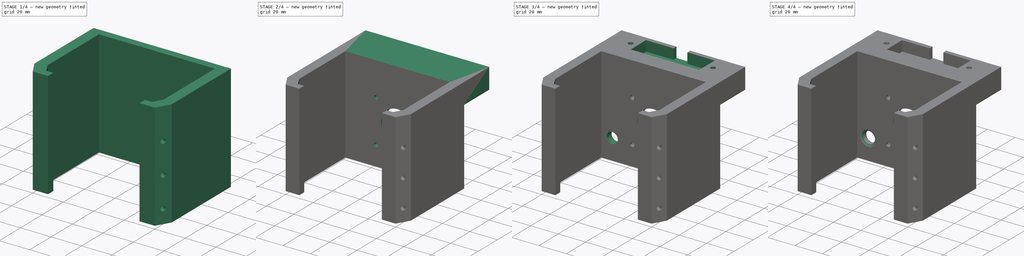
[diagram: build sequence overview — one tinted view per stage of 4, left to right]
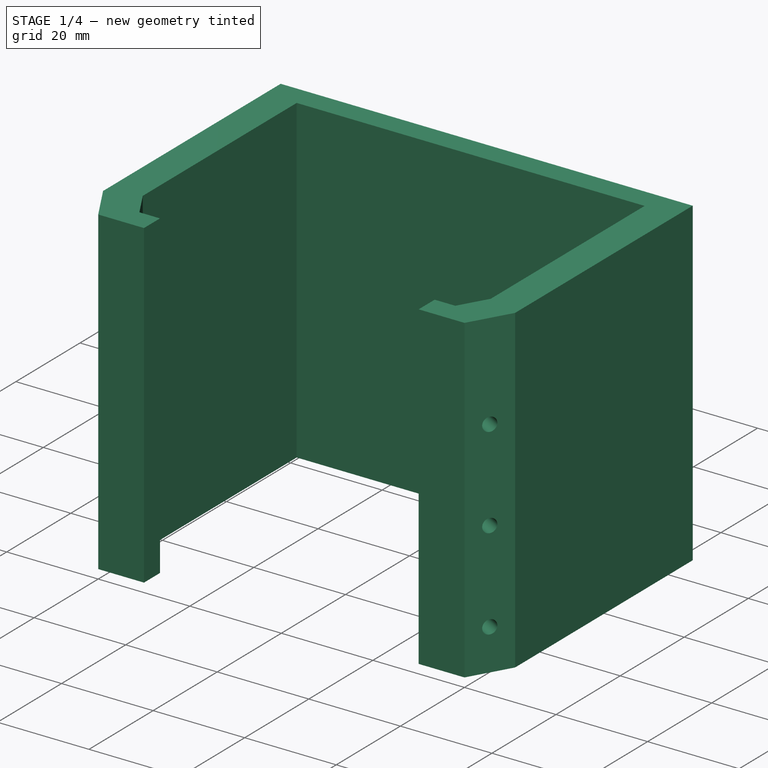
[diagram: stage 1 of 4 — iso view after this stage's code; geometry added in this stage tinted green]
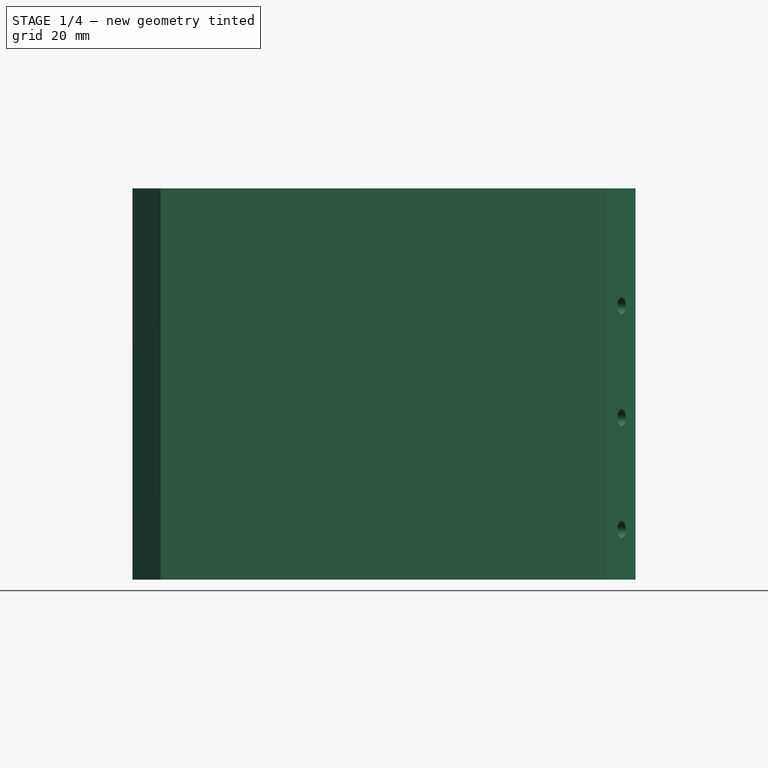
[diagram: stage 1 of 4 — front view after this stage's code; geometry added in this stage tinted green]
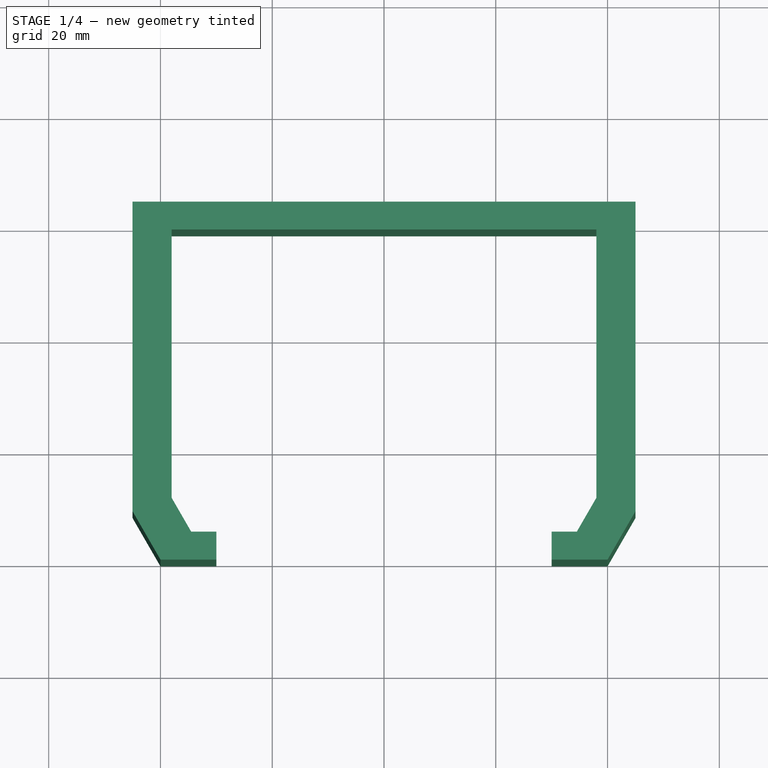
[diagram: stage 1 of 4 — top view after this stage's code; geometry added in this stage tinted green]
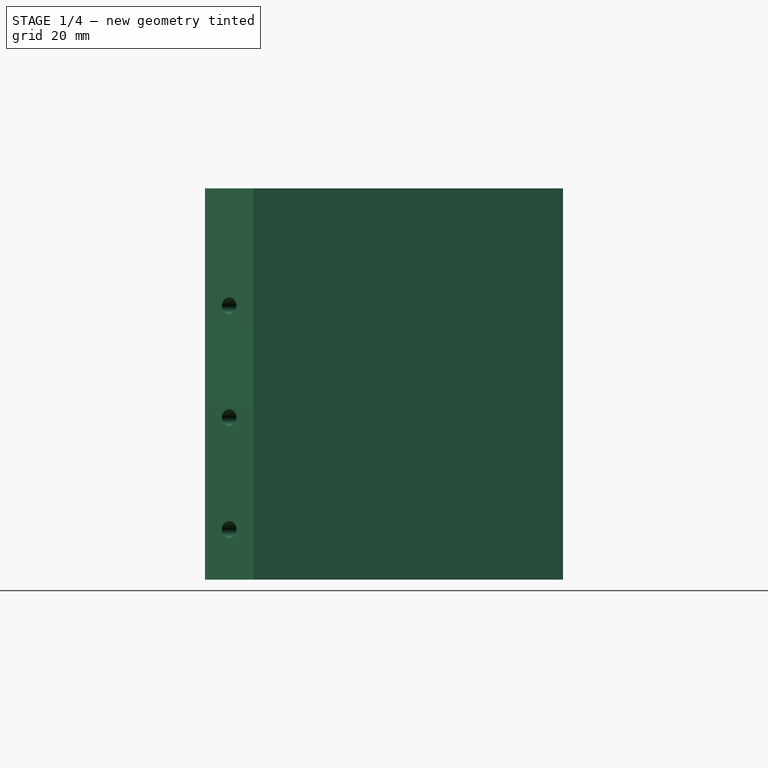
[diagram: stage 1 of 4 — right view after this stage's code; geometry added in this stage tinted green]
FCSTD DOCUMENT  (FreeCAD 2022.407R26244 +4693 (Git))
Label: motorFrame
License: All rights reserved
LicenseURL: http://en.wikipedia.org/wiki/All_rights_reserved
objects: Sketcher::SketchObject×9, PartDesign::Pocket×5, PartDesign::Mirrored×3, PartDesign::Pad×2, PartDesign::Hole×2, PartDesign::Fillet×1, PartDesign::Body×1, App::Link×1
note: 49 computed .brp shape members not serialized (recipe doc carries the construction recipe); baked Part::Feature solids carry a one-line shape summary decoded from their .brp
EXTERNAL_REF file=MonsterKossel_dimensions.FCStd obj=Spreadsheet

FEATURE [Sketcher::SketchObject] Sketch
  FullyConstrained = true
  MapMode = 5
  Support = -> [XY_Plane]
  TreeRank = 0
  sketch-geometry (10):
    g0: LineSegment StartX=30 StartY=0 StartZ=0 EndX=40 EndY=0 EndZ=0
    g1: LineSegment StartX=45 StartY=64.0622 StartZ=0 EndX=0 EndY=64.0622 EndZ=0
    g2: LineSegment StartX=0 StartY=64.0622 StartZ=0 EndX=0 EndY=59.0622 EndZ=0
    g3: LineSegment StartX=0 StartY=59.0622 StartZ=0 EndX=38 EndY=59.0622 EndZ=0
    g4: LineSegment StartX=38 StartY=59.0622 StartZ=0 EndX=38 EndY=11.0622 EndZ=0
    g5: LineSegment StartX=34.5 StartY=5 StartZ=0 EndX=30 EndY=5 EndZ=0
    g6: LineSegment StartX=30 StartY=5 StartZ=0 EndX=30 EndY=0 EndZ=0
    g7: LineSegment StartX=40 StartY=0 StartZ=0 EndX=45 EndY=8.66025 EndZ=0
    g8: LineSegment StartX=45 StartY=64.0622 StartZ=0 EndX=45 EndY=8.66025 EndZ=0
    g9: LineSegment StartX=34.5 StartY=5 StartZ=0 EndX=38 EndY=11.0622 EndZ=0
  constraints (30):
    c: Coincident(g1,g2)
    c: Coincident(g2,g3)
    c: Coincident(g3,g4)
    c: Coincident(g5,g6)
    c: Coincident(g6,g0)
    c: Horizontal(g5)
    c: Horizontal(g0)
    c: Horizontal(g3)
    c: Horizontal(g1)
    c: Vertical(g2)
    c: Vertical(g4)
    c: Vertical(g6)
    c: DistanceY(g0) = 0
    c: DistanceY(g6,g6) = 5
    c: DistanceY(g4,g4) = 48
    c: DistanceY(g2,g2) = 5
    c: DistanceX(g2) = 0
    c: DistanceX(g0) = 40
    c: Coincident(g8,g7)
    c: Vertical(g8)
    c: Coincident(g8,g1)
    c: Coincident(g7,g0)
    c: Angle(g7,g0) = 2.0944
    c: DistanceX(g3,g1) = 7
    c: DistanceX(g-1,g0) = 30
    c: Parallel(g9,g7)
    c: Coincident(g9,g4)
    c: Coincident(g9,g5)
    c: Distance(g9) = 7
    c: Distance(g7) = 10
FEATURE [PartDesign::Pad] Pad
  AddSubType = 0
  AllowMultiFace = false
  CheckUpToFaceLimits = true
  ClaimChildren = false
  Direction = (0,0,1)
  Fit = 0
  FitJoin = 0
  InnerFit = 0
  InnerFitJoin = 0
  InnerTaperAngle = 0
  InnerTaperAngleRev = 0
  Length = 70
  Length2 = 100
  NewSolid = false
  Profile = -> Sketch
  Refine = true
  Suppress = false
  TreeRank = 0
  Type = 0
  _ProfileBasedVersion = 0
FEATURE [PartDesign::Mirrored] Mirrored
  AddSubType = 0
  BaseFeature = -> Pad
  CopyShape = true
  MirrorPlane = -> Sketch [V_Axis]
  NewSolid = false
  OriginalSubs = -> [Pad]
  Originals = -> [Pad]
  ParallelTransform = true
  Refine = true
  SubTransform = true
  Suppress = false
  TreeRank = 0
  _Version = 0
FEATURE [Sketcher::SketchObject] Sketch001
  FullyConstrained = true
  MapMode = 5
  Placement = pos=(23.7099,-13.6889,0) rot=(-0.377964,0.654654,0.654654;3.86433rad)
  Support = -> [Pad]
  TreeRank = 0
  sketch-geometry (3):
    g0: Circle CenterX=-25 CenterY=49 CenterZ=0 NormalX=0 NormalY=0 NormalZ=1 AngleXU=0 Radius=1.5
    g1: Circle CenterX=-25 CenterY=9 CenterZ=0 NormalX=0 NormalY=0 NormalZ=1 AngleXU=0 Radius=1.5
    g2: Circle CenterX=-25 CenterY=29 CenterZ=0 NormalX=0 NormalY=0 NormalZ=1 AngleXU=0 Radius=1.5
  constraints (9):
    c: Radius(g0) = 1.5
    c: Equal(g0,g2)
    c: Equal(g0,g1)
    c: DistanceY(g1,g2) = 20
    c: DistanceY(g2,g0) = 20
    c: DistanceY(g1) = 9
    c: Vertical(g1,g2)
    c: Vertical(g2,g0)
    c: DistanceX(g1,g-1) = 25
FEATURE [PartDesign::Pocket] Pocket001  label="Frame mounting holes"
  AddSubType = 1
  BaseFeature = -> Mirrored
  CheckUpToFaceLimits = true
  ClaimChildren = false
  Fit = 0
  FitJoin = 0
  InnerFit = 0
  InnerFitJoin = 0
  InnerTaperAngle = 0
  InnerTaperAngleRev = 0
  Length = 5
  Length2 = 100
  NewSolid = false
  Profile = -> Sketch001
  Refine = true
  Suppress = false
  TreeRank = 0
  Type = 1
  _ProfileBasedVersion = 0
  _Version = 0
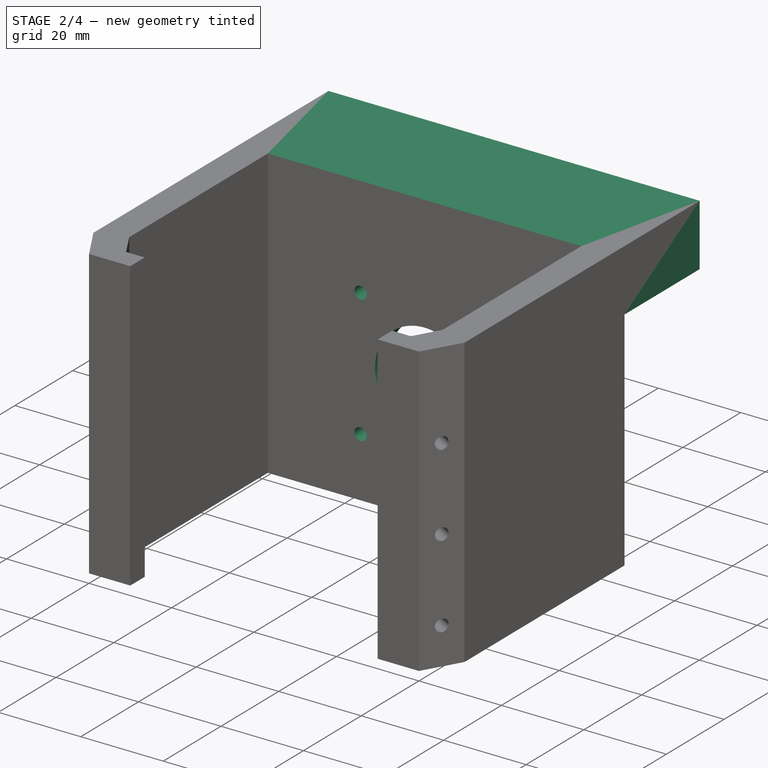
[diagram: stage 2 of 4 — iso view after this stage's code; geometry added in this stage tinted green]
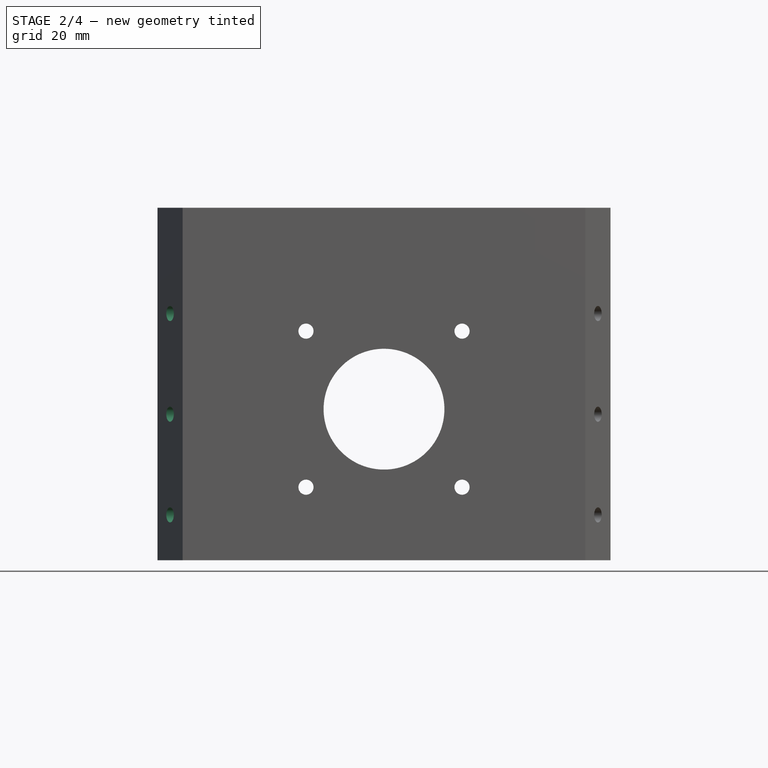
[diagram: stage 2 of 4 — front view after this stage's code; geometry added in this stage tinted green]
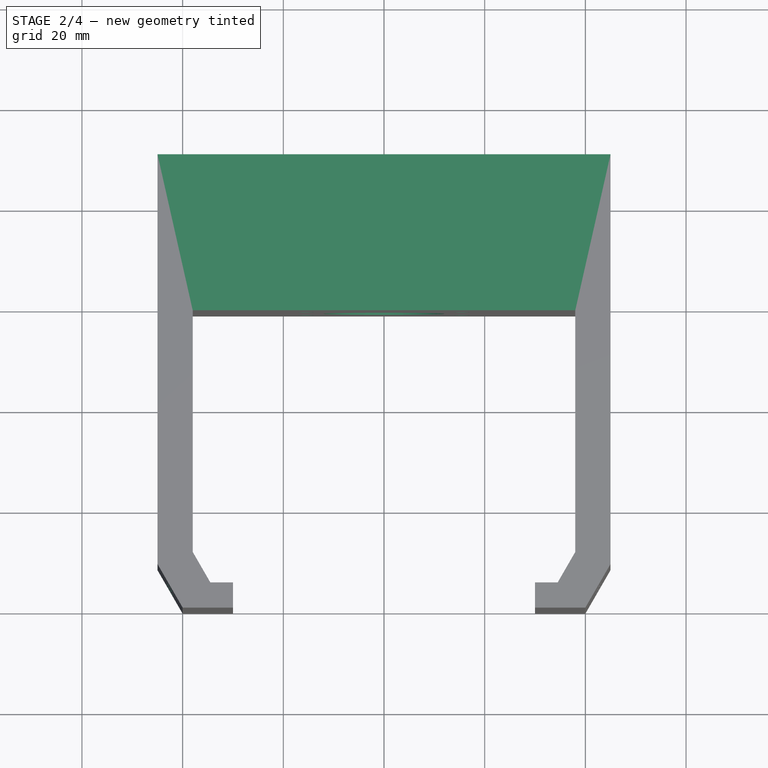
[diagram: stage 2 of 4 — top view after this stage's code; geometry added in this stage tinted green]
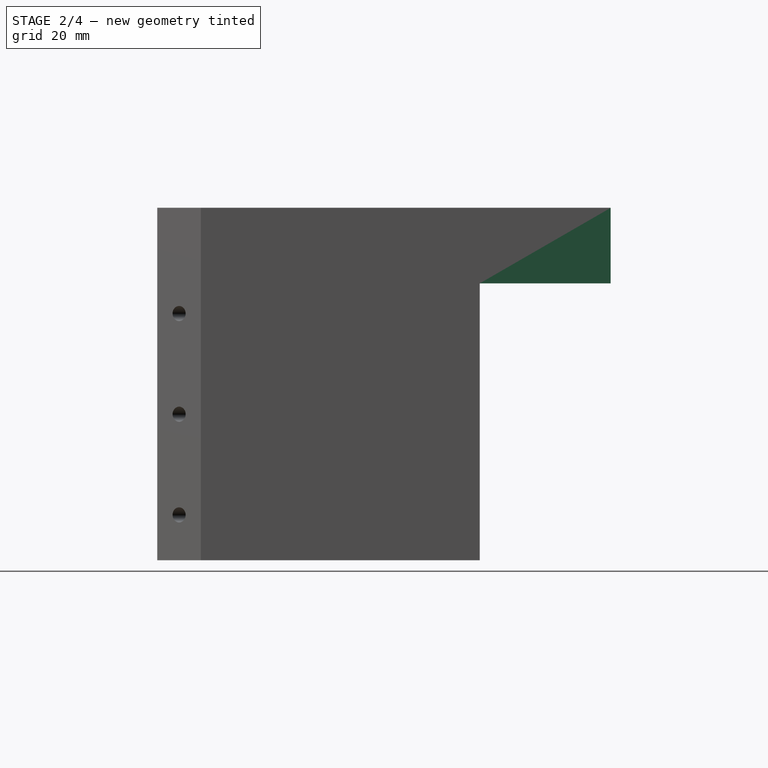
[diagram: stage 2 of 4 — right view after this stage's code; geometry added in this stage tinted green]
FEATURE [PartDesign::Mirrored] Mirrored001  label="Mirrored mounting holes"
  AddSubType = 0
  BaseFeature = -> Pocket001
  CopyShape = true
  MirrorPlane = -> YZ_Plane
  NewSolid = false
  OriginalSubs = -> [Pocket001]
  Originals = -> [Pocket001]
  ParallelTransform = true
  Refine = true
  SubTransform = true
  Suppress = false
  TreeRank = 0
  _Version = 0
FEATURE [Sketcher::SketchObject] Sketch002
  FullyConstrained = true
  MapMode = 2
  Placement = pos=(0,0,0) rot=(1,0,0;1.5708rad)
  TreeRank = 0
  sketch-geometry (9):
    g0: Circle CenterX=0 CenterY=30 CenterZ=0 NormalX=0 NormalY=0 NormalZ=1 AngleXU=0 Radius=12
    g1: Circle CenterX=-15.5 CenterY=45.5 CenterZ=0 NormalX=0 NormalY=0 NormalZ=1 AngleXU=0 Radius=1.5
    g2: Circle CenterX=-15.5 CenterY=14.5 CenterZ=0 NormalX=0 NormalY=0 NormalZ=1 AngleXU=0 Radius=1.5
    g3: Circle CenterX=15.5 CenterY=14.5 CenterZ=0 NormalX=0 NormalY=0 NormalZ=1 AngleXU=0 Radius=1.5
    g4: Circle CenterX=15.5 CenterY=45.5 CenterZ=0 NormalX=0 NormalY=0 NormalZ=1 AngleXU=0 Radius=1.5
    g5: LineSegment [constr] StartX=-15.5 StartY=45.5 StartZ=0 EndX=15.5 EndY=45.5 EndZ=0
    g6: LineSegment [constr] StartX=15.5 StartY=45.5 StartZ=0 EndX=15.5 EndY=14.5 EndZ=0
    g7: LineSegment [constr] StartX=15.5 StartY=14.5 StartZ=0 EndX=-15.5 EndY=14.5 EndZ=0
    g8: LineSegment [constr] StartX=-15.5 StartY=14.5 StartZ=0 EndX=-15.5 EndY=45.5 EndZ=0
  constraints (22):
    c: Radius(g1) = 1.5
    c: Equal(g1,g2)
    c: Equal(g1,g4)
    c: Equal(g1,g3)
    c: Radius(g0) = 12
    c: DistanceX(g1,g4) = 31
    c: DistanceY(g2,g1) = 31
    c: DistanceY(g0) = 30
    c: Coincident(g5,g6)
    c: Coincident(g6,g7)
    c: Coincident(g7,g8)
    c: Coincident(g8,g5)
    c: Horizontal(g5)
    c: Horizontal(g7)
    c: Vertical(g6)
    c: Vertical(g8)
    c: Coincident(g6,g3)
    c: Coincident(g7,g2)
    c: Coincident(g5,g1)
    c: Coincident(g5,g4)
    c: PointOnObject(g0,g-2)
    c: Symmetric(g1,g3,g0)
FEATURE [PartDesign::Pocket] Pocket  label="Stepper mounting holes"
  AddSubType = 1
  BaseFeature = -> Mirrored001
  CheckUpToFaceLimits = true
  ClaimChildren = false
  Fit = 0
  FitJoin = 0
  InnerFit = 0
  InnerFitJoin = 0
  InnerTaperAngle = 0
  InnerTaperAngleRev = 0
  Length = 5
  Length2 = 100
  NewSolid = false
  Profile = -> Sketch002
  Refine = true
  Suppress = false
  TreeRank = 0
  Type = 1
  _ProfileBasedVersion = 0
  _Version = 0
FEATURE [Sketcher::SketchObject] Sketch003
  FullyConstrained = true
  MapMode = 5
  Placement = pos=(0,64.0622,0) rot=(0,0.707107,0.707107;3.14159rad)
  Support = -> [Pocket]
  TreeRank = 0
  sketch-geometry (4):
    g0: LineSegment StartX=-45 StartY=70 StartZ=0 EndX=45 EndY=70 EndZ=0
    g1: LineSegment StartX=45 StartY=70 StartZ=0 EndX=45 EndY=55 EndZ=0
    g2: LineSegment StartX=45 StartY=55 StartZ=0 EndX=-45 EndY=55 EndZ=0
    g3: LineSegment StartX=-45 StartY=55 StartZ=0 EndX=-45 EndY=70 EndZ=0
  constraints (12):
    c: Coincident(g0,g1)
    c: Coincident(g1,g2)
    c: Coincident(g2,g3)
    c: Coincident(g3,g0)
    c: Horizontal(g0)
    c: Horizontal(g2)
    c: Vertical(g1)
    c: Vertical(g3)
    c: DistanceX(g0,g0) = 90
    c: DistanceY(g3,g3) = 15
    c: DistanceX(g2) = -45
    c: DistanceY(g2) = 55
FEATURE [PartDesign::Pad] Pad001  label="Bed mounting shelf"
  AddSubType = 0
  AlongSketchNormal = false
  BaseFeature = -> Pocket
  CheckUpToFaceLimits = true
  ClaimChildren = false
  Direction = (0,1,-2e-16)
  Fit = 0
  FitJoin = 0
  InnerFit = 0
  InnerFitJoin = 0
  InnerTaperAngle = 0
  InnerTaperAngleRev = 0
  Length = 26
  Length2 = 100
  NewSolid = false
  Profile = -> Sketch003
  Refine = true
  Suppress = false
  TreeRank = 0
  Type = 0
  _ProfileBasedVersion = 0
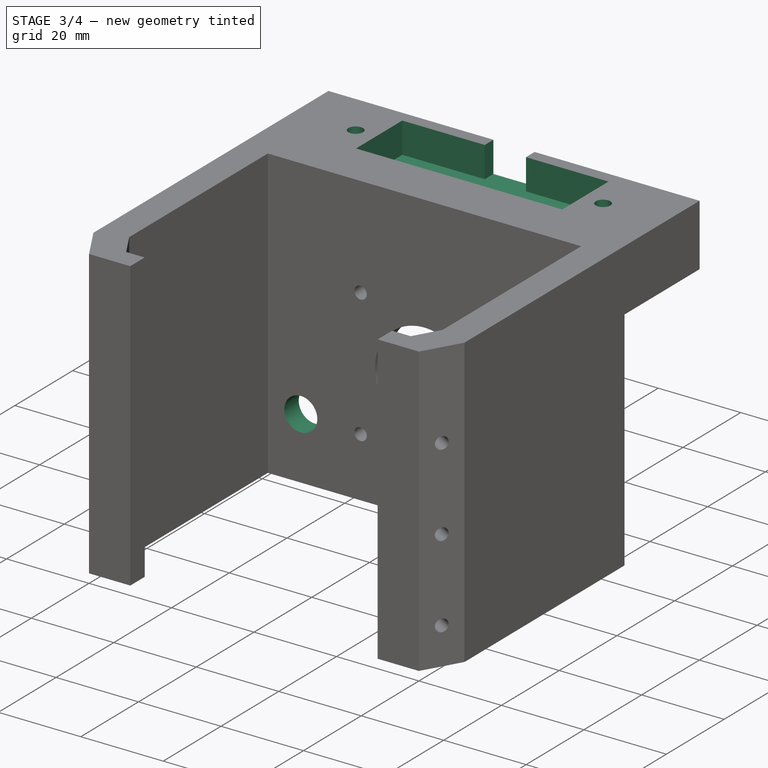
[diagram: stage 3 of 4 — iso view after this stage's code; geometry added in this stage tinted green]
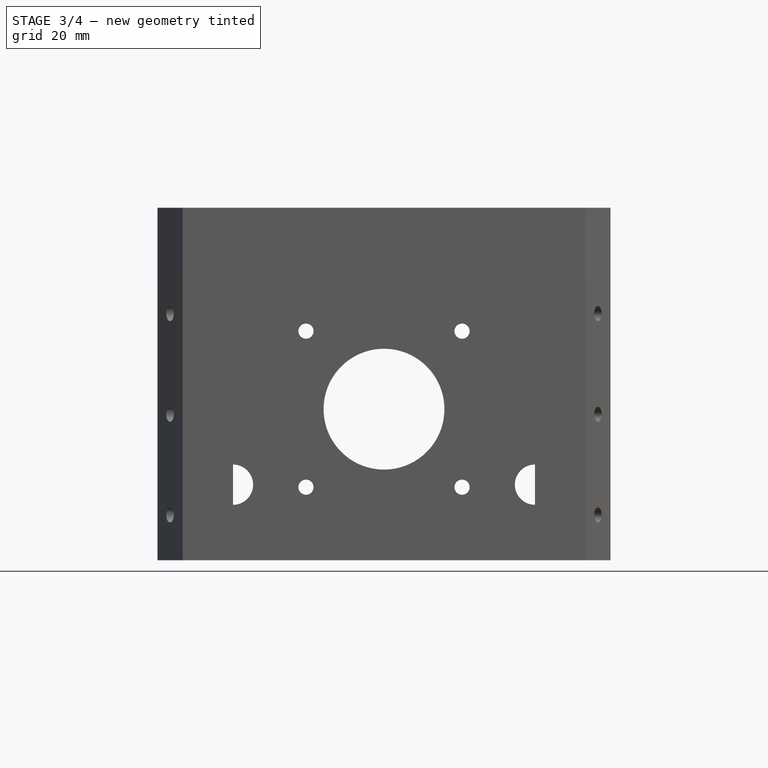
[diagram: stage 3 of 4 — front view after this stage's code; geometry added in this stage tinted green]
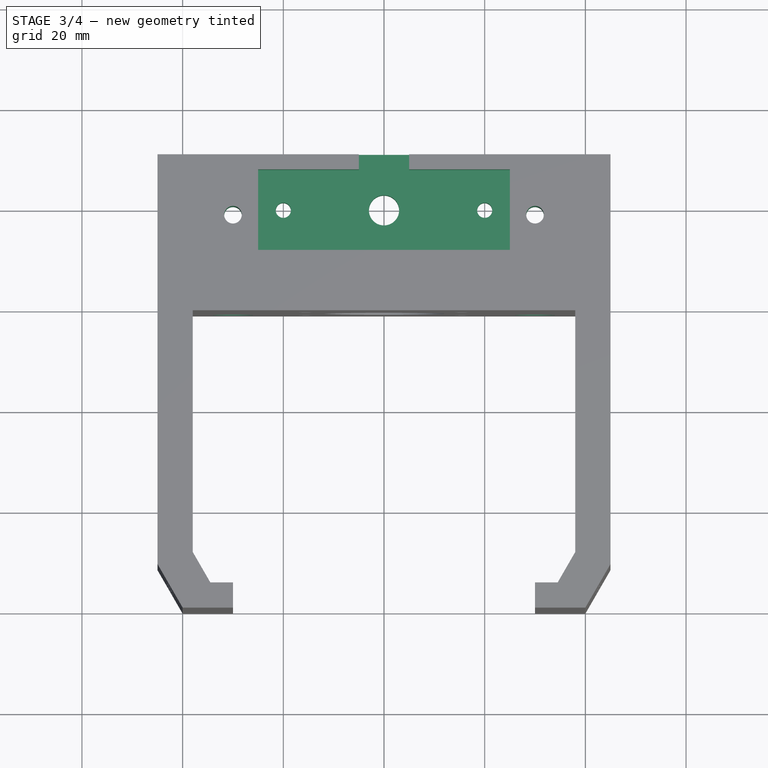
[diagram: stage 3 of 4 — top view after this stage's code; geometry added in this stage tinted green]
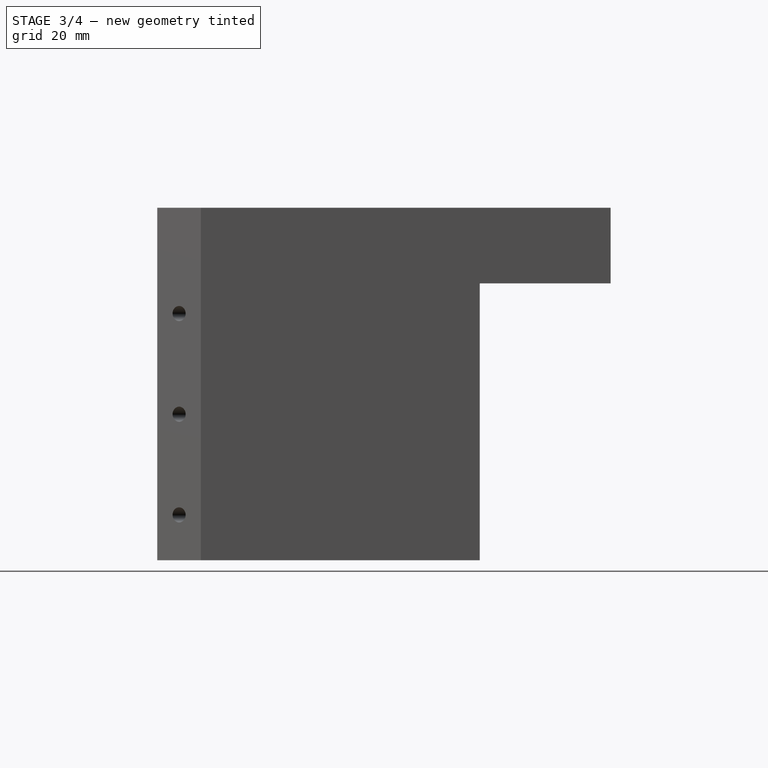
[diagram: stage 3 of 4 — right view after this stage's code; geometry added in this stage tinted green]
FEATURE [Sketcher::SketchObject] Sketch004
  ExternalGeometry = -> [Pad001]
  FullyConstrained = true
  MapMode = 5
  Placement = pos=(0,0,70) rot=(0,0,1;0rad)
  Support = -> [Pad001]
  TreeRank = 0
  sketch-geometry (8):
    g0: LineSegment StartX=-5 StartY=93.0622 StartZ=0 EndX=5 EndY=93.0622 EndZ=0
    g1: LineSegment StartX=5 StartY=87.0622 StartZ=0 EndX=25 EndY=87.0622 EndZ=0
    g2: LineSegment StartX=25 StartY=87.0622 StartZ=0 EndX=25 EndY=71.0622 EndZ=0
    g3: LineSegment StartX=25 StartY=71.0622 StartZ=0 EndX=-25 EndY=71.0622 EndZ=0
    g4: LineSegment StartX=-25 StartY=71.0622 StartZ=0 EndX=-25 EndY=87.0622 EndZ=0
    g5: LineSegment StartX=-25 StartY=87.0622 StartZ=0 EndX=-5 EndY=87.0622 EndZ=0
    g6: LineSegment StartX=-5 StartY=87.0622 StartZ=0 EndX=-5 EndY=93.0622 EndZ=0
    g7: LineSegment StartX=5 StartY=93.0622 StartZ=0 EndX=5 EndY=87.0622 EndZ=0
  constraints (23):
    c: Horizontal(g1)
    c: Coincident(g1,g2)
    c: Vertical(g2)
    c: Coincident(g2,g3)
    c: Horizontal(g3)
    c: Coincident(g3,g4)
    c: Vertical(g4)
    c: Coincident(g4,g5)
    c: Horizontal(g5)
    c: Coincident(g5,g6)
    c: Coincident(g6,g0)
    c: Vertical(g6)
    c: Equal(g5,g1)
    c: DistanceY(g4,g4) = 16
    c: DistanceX(g3) = -25
    c: DistanceY(g6,g6) = 6
    c: DistanceX(g0,g-1) = 5
    c: Symmetric(g0,g0,g-2)
    c: DistanceY(g4,g-3) = 3
    c: Coincident(g7,g0)
    c: Coincident(g7,g1)
    c: Vertical(g7)
    c: Equal(g7,g6)
FEATURE [PartDesign::Pocket] Pocket002  label="Andromeda pocket"
  AddSubType = 1
  BaseFeature = -> Pad001
  CheckUpToFaceLimits = true
  ClaimChildren = false
  Fit = 0
  FitJoin = 0
  InnerFit = 0
  InnerFitJoin = 0
  InnerTaperAngle = 0
  InnerTaperAngleRev = 0
  Length = 7.5
  Length2 = 100
  NewSolid = false
  Profile = -> Sketch004
  Refine = true
  Suppress = false
  TreeRank = 0
  Type = 0
  _ProfileBasedVersion = 0
  _Version = 0
FEATURE [Sketcher::SketchObject] Sketch005
  ExternalGeometry = -> [Pocket002]
  FullyConstrained = true
  MapMode = 5
  Placement = pos=(0,0,70) rot=(0,0,1;0rad)
  Support = -> [Pocket002]
  TreeRank = 0
  expr: Constraints[2] = <<Dimensions>>.bed_hole_spacing
  sketch-geometry (2):
    g0: Circle CenterX=-30 CenterY=78.0622 CenterZ=0 NormalX=0 NormalY=0 NormalZ=1 AngleXU=0 Radius=1.5
    g1: Circle CenterX=30 CenterY=78.0622 CenterZ=0 NormalX=0 NormalY=0 NormalZ=1 AngleXU=0 Radius=1.5
  constraints (5):
    c: Radius(g0) = 1.5
    c: Equal(g0,g1)
    c: DistanceX(g0,g1) = 60
    c: DistanceY(g0,g-3) = 12
    c: Symmetric(g1,g0,g-2)
FEATURE [PartDesign::Hole] Hole  label="Bed mounting holes"
  AddSubType = 1
  BaseFeature = -> Pocket002
  ClaimChildren = false
  CustomThreadClearance = 0
  Depth = 25
  DepthType = 0
  Diameter = 3.5
  DrillForDepth = false
  DrillPoint = 1
  DrillPointAngle = 118
  Fit = 0
  FitJoin = 0
  HoleCutCountersinkAngle = 90
  HoleCutCustomValues = false
  HoleCutDepth = 0
  HoleCutDiameter = 4
  HoleCutType = 0
  InnerFit = 0
  InnerFitJoin = 0
  ModelThread = false
  NewSolid = false
  Profile = -> Sketch005
  Refine = true
  Suppress = false
  Tapered = false
  TaperedAngle = 90
  ThreadClass = 0
  ThreadDepth = 25
  ThreadDepthType = 0
  ThreadDirection = 0
  ThreadFit = 0
  ThreadSize = 0
  ThreadType = 0
  Threaded = false
  TreeRank = 0
  UseCustomThreadClearance = false
  _ProfileBasedVersion = 0
FEATURE [Sketcher::SketchObject] Sketch006
  AttachmentOffset = pos=(0,0,0) rot=(0,1,0;3.14159rad)
  ExternalGeometry = -> [Hole]
  FullyConstrained = true
  MapMode = 5
  Placement = pos=(0,0,62.5) rot=(0,0,1;0rad)
  Support = -> [Hole]
  TreeRank = 0
  sketch-geometry (5):
    g0: Circle CenterX=0 CenterY=79.0622 CenterZ=0 NormalX=0 NormalY=0 NormalZ=1 AngleXU=0 Radius=3
    g1: Circle CenterX=20 CenterY=79.0622 CenterZ=0 NormalX=0 NormalY=0 NormalZ=1 AngleXU=0 Radius=1.5
    g2: Circle CenterX=-20 CenterY=79.0622 CenterZ=0 NormalX=0 NormalY=0 NormalZ=1 AngleXU=0 Radius=1.5
    g3: LineSegment [constr] StartX=-25 StartY=87.0622 StartZ=0 EndX=-25 EndY=79.0622 EndZ=0
    g4: LineSegment [constr] StartX=-25 StartY=79.0622 StartZ=0 EndX=-25 EndY=71.0622 EndZ=0
  constraints (14):
    c: PointOnObject(g0,g-2)
    c: Radius(g0) = 3
    c: DistanceY(g1,g0) = 0
    c: DistanceY(g2,g1) = 0
    c: DistanceX(g-1,g1) = 20
    c: DistanceX(g2,g-1) = 20
    c: Radius(g1) = 1.5
    c: Equal(g1,g2)
    c: Coincident(g-3,g3)
    c: PointOnObject(g3,g-3)
    c: Coincident(g3,g4)
    c: Coincident(g4,g-3)
    c: Equal(g4,g3)
    c: DistanceY(g2,g3) = 0
FEATURE [PartDesign::Pocket] Pocket003  label="Andromeda mounting holes"
  AddSubType = 1
  BaseFeature = -> Hole
  CheckUpToFaceLimits = true
  ClaimChildren = false
  Fit = 0
  FitJoin = 0
  InnerFit = 0
  InnerFitJoin = 0
  InnerTaperAngle = 0
  InnerTaperAngleRev = 0
  Length = 5
  Length2 = 100
  Midplane = true
  NewSolid = false
  Profile = -> Sketch006
  Refine = true
  Suppress = false
  TreeRank = 0
  Type = 1
  _ProfileBasedVersion = 0
  _Version = 0
FEATURE [Sketcher::SketchObject] Sketch007
  ExternalGeometry = -> [Pocket003]
  FullyConstrained = true
  MapMode = 5
  Placement = pos=(0,64.0622,0) rot=(0,0.707107,0.707107;3.14159rad)
  Support = -> [Pocket003]
  TreeRank = 0
  sketch-geometry (2):
    g0: Circle CenterX=-30 CenterY=15 CenterZ=0 NormalX=0 NormalY=0 NormalZ=1 AngleXU=0 Radius=4
    g1: Circle CenterX=30 CenterY=15 CenterZ=0 NormalX=0 NormalY=0 NormalZ=1 AngleXU=0 Radius=4
  constraints (6):
    c: Radius(g1) = 4
    c: Equal(g1,g0)
    c: DistanceY(g-4,g0) = 15
    c: DistanceX(g-4,g0) = 15
    c: DistanceX(g1,g-3) = 15
    c: Horizontal(g0,g1)
FEATURE [PartDesign::Hole] Hole006  label="Cable passthrough"
  AddSubType = 1
  BaseFeature = -> Pocket003
  ClaimChildren = false
  CustomThreadClearance = 0
  Depth = 25
  DepthType = 0
  Diameter = 8
  DrillForDepth = false
  DrillPoint = 1
  DrillPointAngle = 118
  Fit = 0
  FitJoin = 0
  HoleCutCountersinkAngle = 90
  HoleCutCustomValues = false
  HoleCutDepth = 0
  HoleCutDiameter = 0
  HoleCutType = 0
  InnerFit = 0
  InnerFitJoin = 0
  ModelThread = false
  NewSolid = false
  Profile = -> Sketch007
  Refine = true
  Suppress = false
  Tapered = false
  TaperedAngle = 90
  ThreadClass = 0
  ThreadDepth = 23.5
  ThreadDepthType = 0
  ThreadDirection = 0
  ThreadFit = 0
  ThreadSize = 0
  ThreadType = 0
  Threaded = false
  TreeRank = 0
  UseCustomThreadClearance = false
  _ProfileBasedVersion = 0
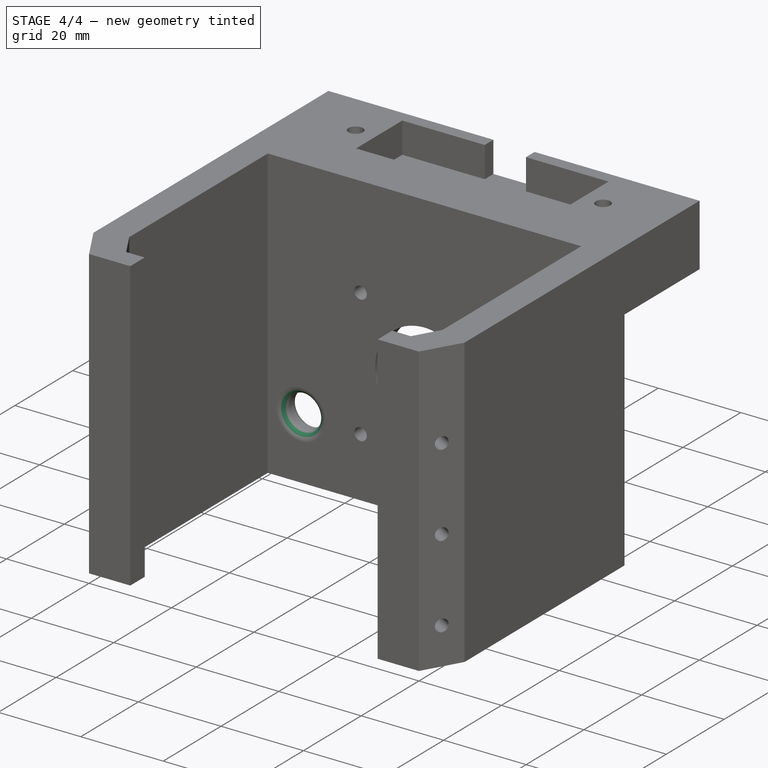
[diagram: stage 4 of 4 — iso view after this stage's code; geometry added in this stage tinted green]
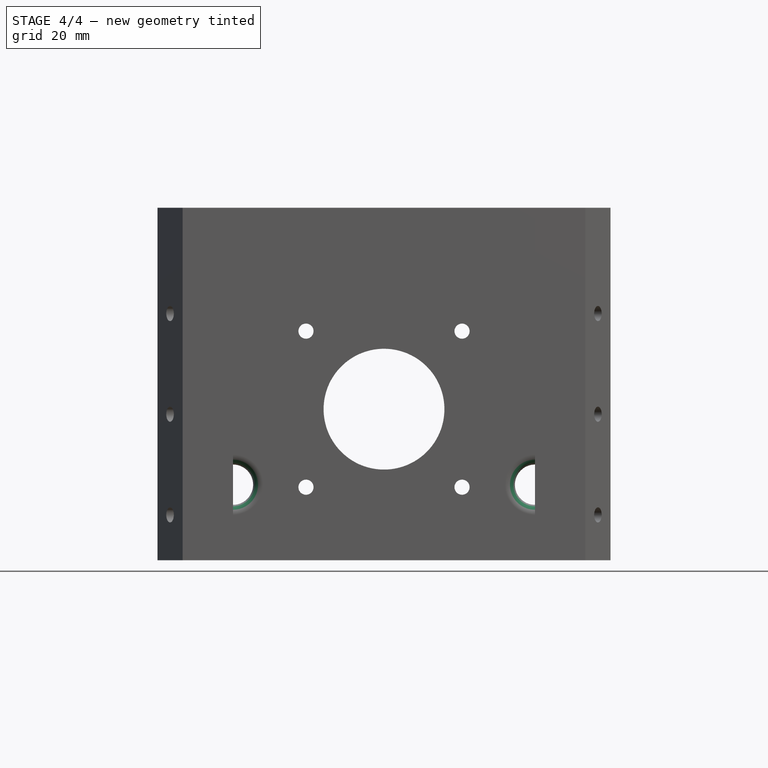
[diagram: stage 4 of 4 — front view after this stage's code; geometry added in this stage tinted green]
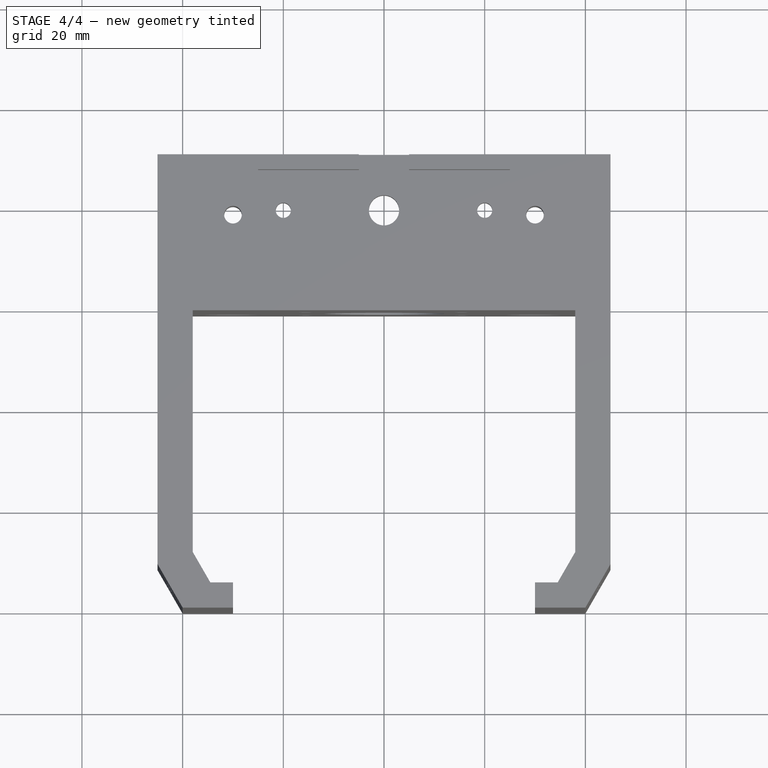
[diagram: stage 4 of 4 — top view after this stage's code; geometry added in this stage tinted green]
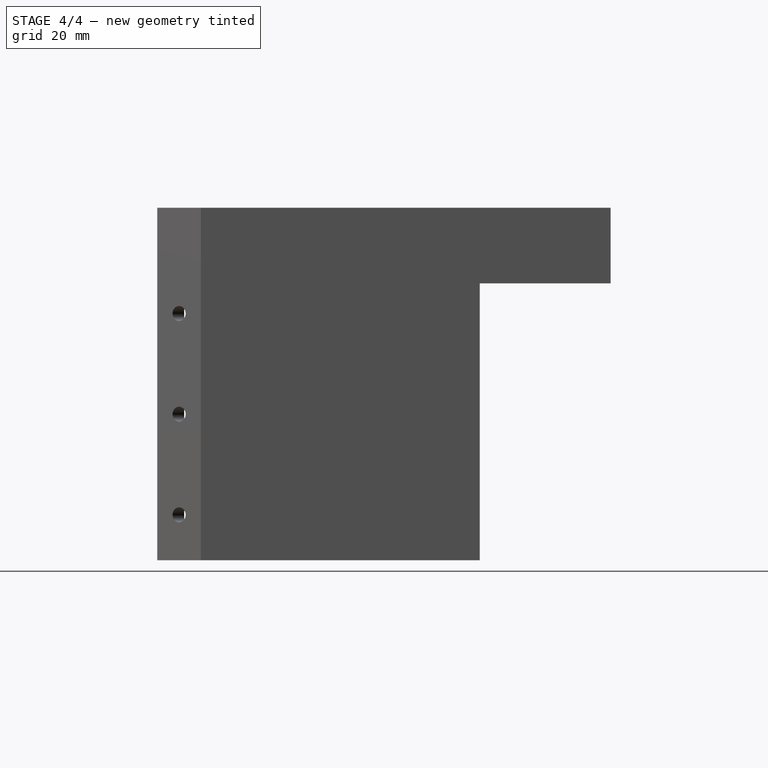
[diagram: stage 4 of 4 — right view after this stage's code; geometry added in this stage tinted green]
FEATURE [PartDesign::Fillet] Fillet
  AddSubType = 0
  Base = -> Hole006 [Edge65,Edge87,Edge60,Edge83]
  BaseFeature = -> Hole006
  NewSolid = false
  Radius = 2
  Refine = true
  SupportTransform = true
  Suppress = false
  TreeRank = 0
FEATURE [Sketcher::SketchObject] Sketch008
  ExternalGeometry = -> [Fillet]
  FullyConstrained = true
  MapMode = 5
  Placement = pos=(23.7099,-13.6889,0) rot=(-0.377964,0.654654,0.654654;3.86433rad)
  Support = -> [Fillet]
  TreeRank = 0
  sketch-geometry (21):
    g0: LineSegment StartX=-21.95 StartY=47.2391 StartZ=0 EndX=-21.95 EndY=50.7609 EndZ=0
    g1: LineSegment StartX=-21.95 StartY=50.7609 StartZ=0 EndX=-25 EndY=52.5218 EndZ=0
    g2: LineSegment StartX=-25 StartY=52.5218 StartZ=0 EndX=-28.05 EndY=50.7609 EndZ=0
    g3: LineSegment StartX=-28.05 StartY=50.7609 StartZ=0 EndX=-28.05 EndY=47.2391 EndZ=0
    g4: LineSegment StartX=-28.05 StartY=47.2391 StartZ=0 EndX=-25 EndY=45.4782 EndZ=0
    g5: LineSegment StartX=-25 StartY=45.4782 StartZ=0 EndX=-21.95 EndY=47.2391 EndZ=0
    g6: Circle [constr] CenterX=-25 CenterY=49 CenterZ=0 NormalX=0 NormalY=0 NormalZ=1 AngleXU=0 Radius=3.52184
    g7: LineSegment StartX=-21.95 StartY=27.2391 StartZ=0 EndX=-21.95 EndY=30.7609 EndZ=0
    g8: LineSegment StartX=-21.95 StartY=30.7609 StartZ=0 EndX=-25 EndY=32.5218 EndZ=0
    g9: LineSegment StartX=-25 StartY=32.5218 StartZ=0 EndX=-28.05 EndY=30.7609 EndZ=0
    g10: LineSegment StartX=-28.05 StartY=30.7609 StartZ=0 EndX=-28.05 EndY=27.2391 EndZ=0
    g11: LineSegment StartX=-28.05 StartY=27.2391 StartZ=0 EndX=-25 EndY=25.4782 EndZ=0
    g12: LineSegment StartX=-25 StartY=25.4782 StartZ=0 EndX=-21.95 EndY=27.2391 EndZ=0
    g13: Circle [constr] CenterX=-25 CenterY=29 CenterZ=0 NormalX=0 NormalY=0 NormalZ=1 AngleXU=0 Radius=3.52184
    g14: LineSegment StartX=-21.95 StartY=7.23908 StartZ=0 EndX=-21.95 EndY=10.7609 EndZ=0
    g15: LineSegment StartX=-21.95 StartY=10.7609 StartZ=0 EndX=-25 EndY=12.5218 EndZ=0
    g16: LineSegment StartX=-25 StartY=12.5218 StartZ=0 EndX=-28.05 EndY=10.7609 EndZ=0
    g17: LineSegment StartX=-28.05 StartY=10.7609 StartZ=0 EndX=-28.05 EndY=7.23908 EndZ=0
    g18: LineSegment StartX=-28.05 StartY=7.23908 StartZ=0 EndX=-25 EndY=5.47816 EndZ=0
    g19: LineSegment StartX=-25 StartY=5.47816 StartZ=0 EndX=-21.95 EndY=7.23908 EndZ=0
    g20: Circle [constr] CenterX=-25 CenterY=9 CenterZ=0 NormalX=0 NormalY=0 NormalZ=1 AngleXU=0 Radius=3.52184
  constraints (48):
    c: Coincident(g0,g1)
    c: Coincident(g1,g2)
    c: Coincident(g2,g3)
    c: Coincident(g3,g4)
    c: Coincident(g4,g5)
    c: Coincident(g5,g0)
    c: Equal(g0, g1-g5) x5
    c: PointOnObject(g0,g6)
    c: PointOnObject(g1,g6)
    c: PointOnObject(g2,g6)
    c: PointOnObject(g3,g6)
    c: PointOnObject(g4,g6)
    c: PointOnObject(g5,g6)
    c: Coincident(g6,g-3)
    c: Coincident(g7,g8)
    c: Coincident(g8,g9)
    c: Coincident(g9,g10)
    c: Coincident(g10,g11)
    c: Coincident(g11,g12)
    c: Coincident(g12,g7)
    c: Equal(g7, g8-g12) x5
    c: PointOnObject(g7,g13)
    c: PointOnObject(g8,g13)
    c: PointOnObject(g9,g13)
    c: PointOnObject(g10,g13)
    c: PointOnObject(g11,g13)
    c: PointOnObject(g12,g13)
    c: Coincident(g13,g-4)
    c: Coincident(g14,g15)
    c: Coincident(g15,g16)
    c: Coincident(g16,g17)
    c: Coincident(g17,g18)
    c: Coincident(g18,g19)
    c: Coincident(g19,g14)
    c: Equal(g14, g15-g19) x5
    c: PointOnObject(g14,g20)
    c: PointOnObject(g15,g20)
    c: PointOnObject(g16,g20)
    c: PointOnObject(g17,g20)
    c: PointOnObject(g18,g20)
    c: PointOnObject(g19,g20)
    c: Coincident(g20,g-5)
    c: Vertical(g14)
    c: Vertical(g7)
    c: Vertical(g0)
    c: Equal(g6,g13)
    c: Equal(g13,g20)
    c: DistanceX(g3,g0) = 6.1
FEATURE [PartDesign::Pocket] Pocket004  label="Nut pockets right"
  AddSubType = 1
  BaseFeature = -> Fillet
  CheckUpToFaceLimits = true
  ClaimChildren = false
  Fit = 0
  FitJoin = 0
  InnerFit = 0
  InnerFitJoin = 0
  InnerTaperAngle = 0
  InnerTaperAngleRev = 0
  Length = 3
  Length2 = 100
  NewSolid = false
  Profile = -> Sketch008
  Refine = true
  Suppress = false
  TreeRank = 0
  Type = 0
  _ProfileBasedVersion = 0
  _Version = 0
FEATURE [PartDesign::Mirrored] Mirrored002  label="Nut pockets left"
  AddSubType = 0
  BaseFeature = -> Pocket004
  CopyShape = true
  MirrorPlane = -> YZ_Plane
  NewSolid = false
  OriginalSubs = -> [Pocket004]
  Originals = -> [Pocket004]
  ParallelTransform = true
  Refine = true
  SubTransform = true
  Suppress = false
  TreeRank = 0
  _Version = 0
FEATURE [PartDesign::Body] Body  label="MotorFrame"
  AutoGroupSolids = false
  ExportMode = 0
  Group = -> [Sketch,Pad,Sketch001,Mirrored,Pocket001,Mirrored001,Sketch002,Pocket,Sketch003,Pad001,Sketch004,Pocket002,Sketch005,Hole,Sketch006,Pocket003,Sketch007,Hole006,Fillet,Sketch008,Pocket004,Mirrored002]
  Origin = -> Origin
  Tip = -> Mirrored002
  TreeRank = 0
  _ExportChildren = -> [Pad,Mirrored,Pocket001,Mirrored001,Pocket,Pad001,Pocket002,Hole,Pocket003,Hole006,Fillet,Pocket004,Mirrored002]
  _GroupVersion = 1
FEATURE [App::Link] Link  label="Dimensions"
  AutoLinkLabel = true
  AutoPlacement = true
  LinkedObject = -> <external MonsterKossel_dimensions.FCStd>#Spreadsheet
  SyncGroupVisibility = false
  TreeRank = 1
  _LinkVersion = 1
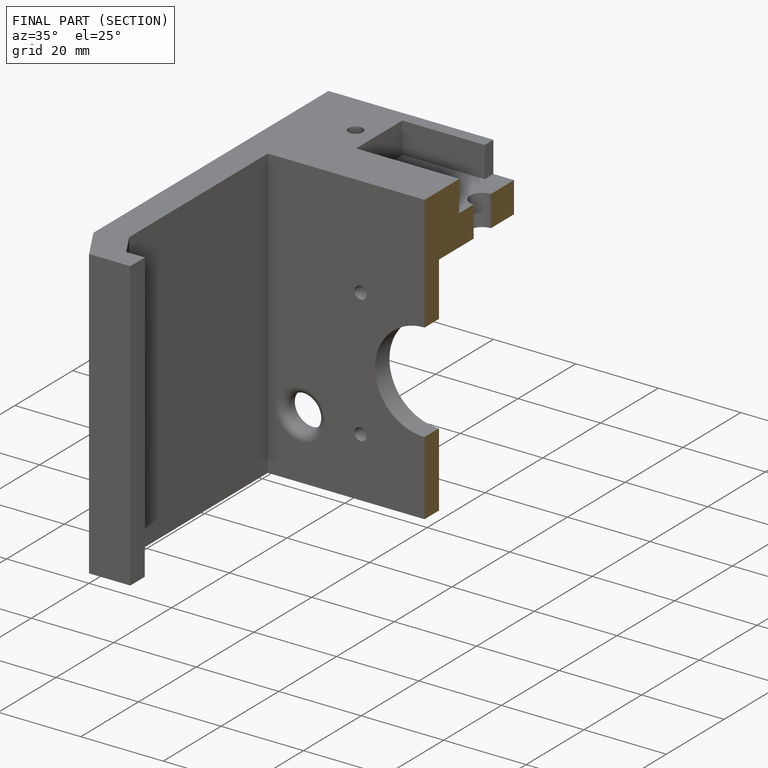
[diagram: finished part — half-section view (interior)]
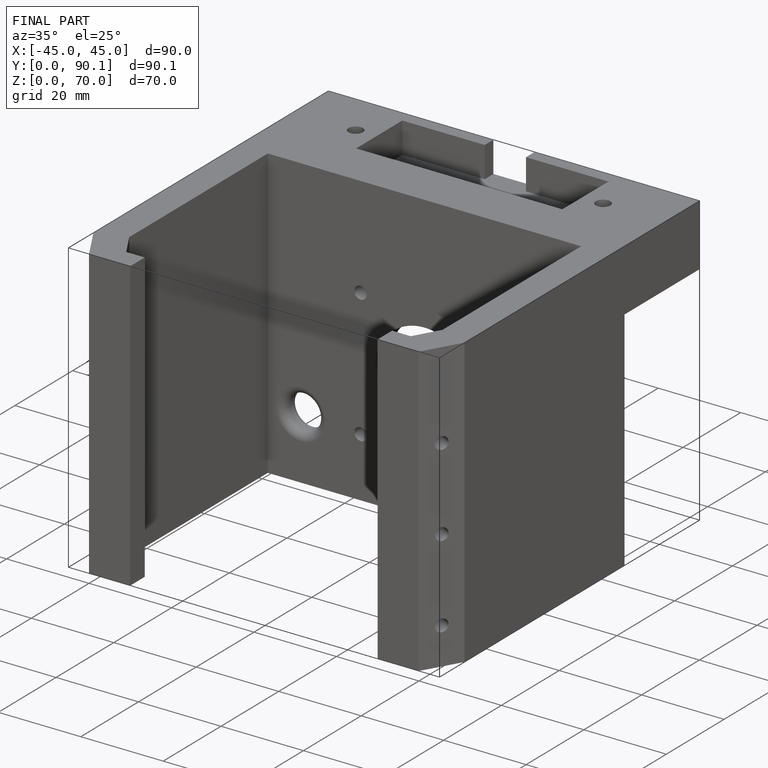
[diagram: finished part — iso view with bounding-box wireframe]
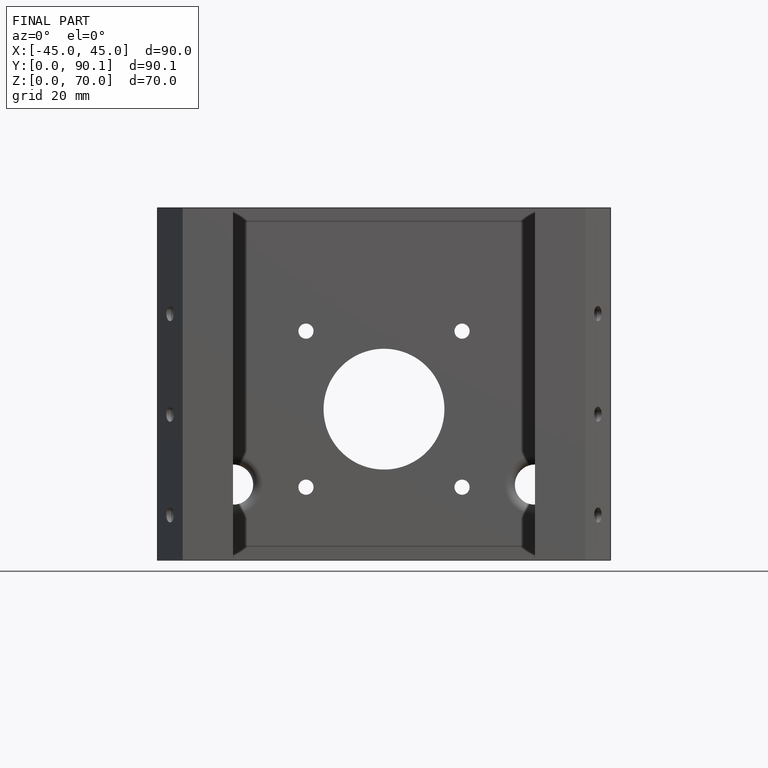
[diagram: finished part — front view with bounding-box wireframe]
